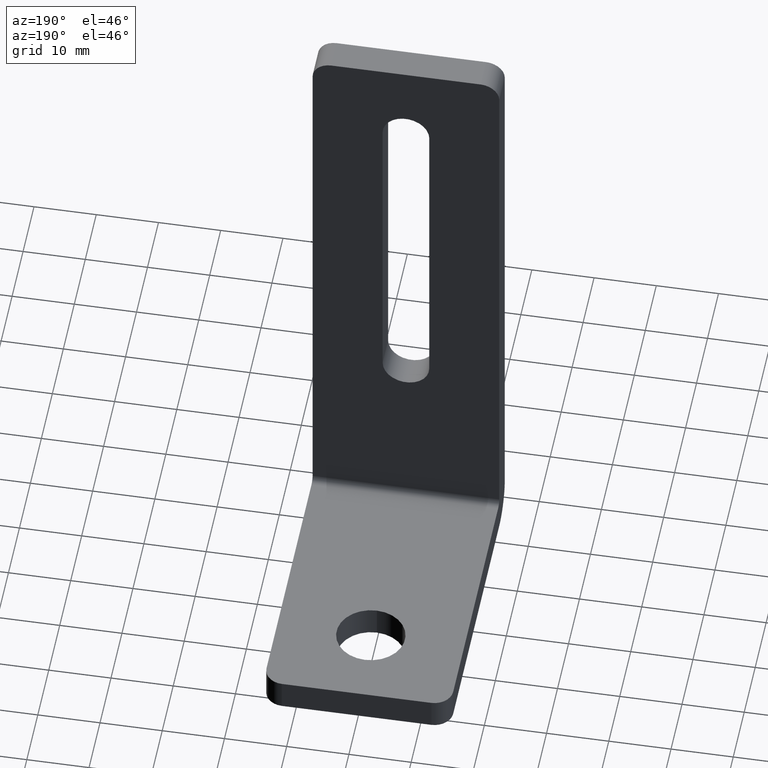
[diagram: clean part render]
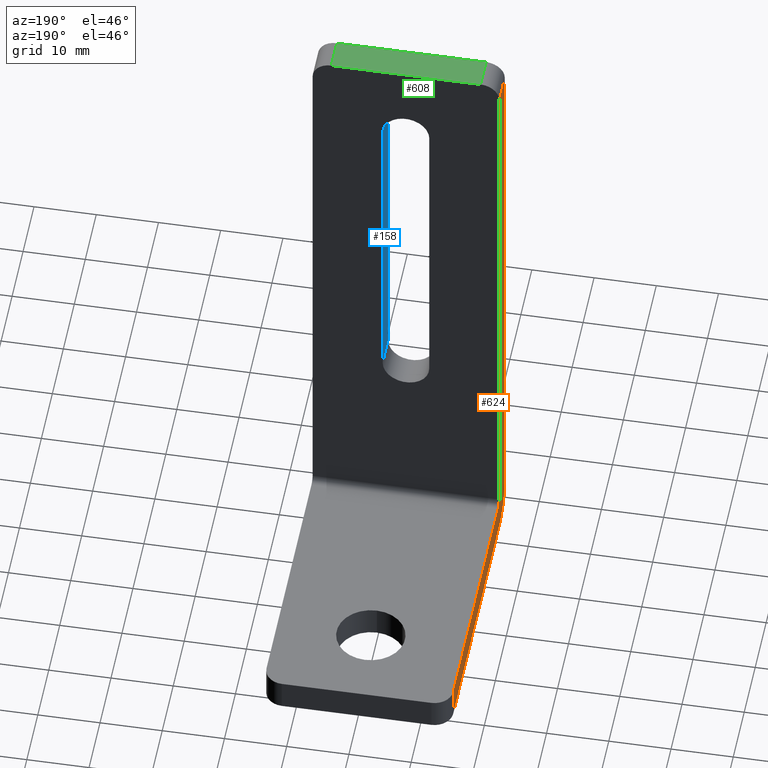
[diagram: same view with three faces highlighted in distinct colors, each labeled with its STEP entity id]
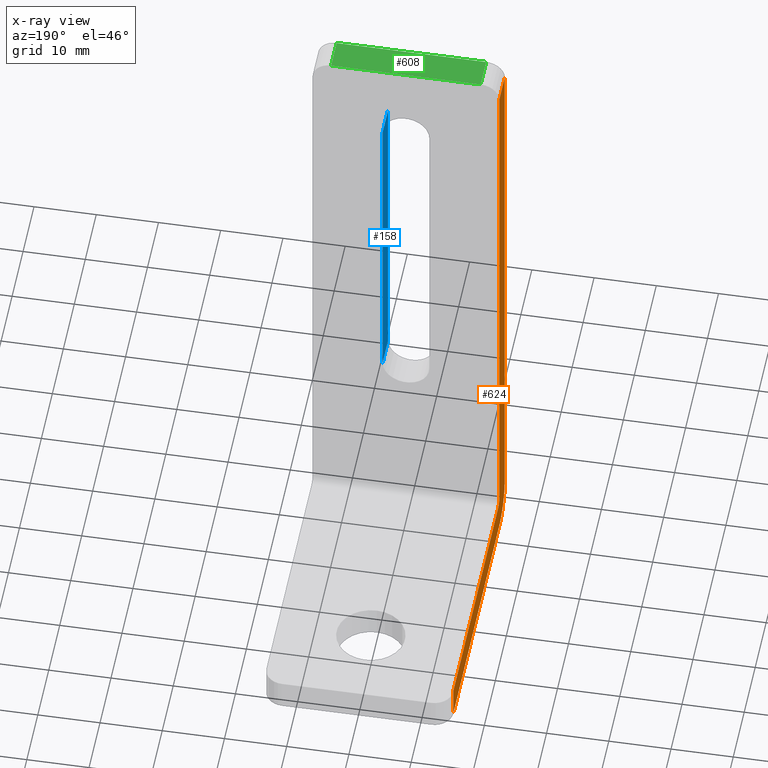
[diagram: x-ray of the same camera — body ghosted, the three highlighted faces saturated]
A machine part, auxiliary view with three faces highlighted in distinct colors.
The next image is the same camera in x-ray (body ghosted, the three faces saturated) — at least one of them is partly hidden behind the body in this view.
Their STEP definitions:

[orange] entity #624 — the highlighted planar face has unit normal (1, 0, 0).
#7=CARTESIAN_POINT('',(-15.0,-30.999999999998181,5.000000000000002));
#8=VERTEX_POINT('',#7);
#9=CARTESIAN_POINT('',(-15.0,-31.999999999998181,6.000000000000002));
#10=VERTEX_POINT('',#9);
#11=CARTESIAN_POINT('',(-15.0,-30.999999999998181,6.000000000000002));
#12=DIRECTION('',(-1.0,6.123234E-017,-3.749399E-033));
#13=DIRECTION('',(6.123234E-017,1.0,-6.123234E-017));
#14=AXIS2_PLACEMENT_3D('',#11,#12,#13);
#15=CIRCLE('',#14,1.000000000000078);
#16=EDGE_CURVE('',#8,#10,#15,.T.);
#49=CARTESIAN_POINT('',(-15.0,-36.999999999998181,5.000000000000003));
#50=VERTEX_POINT('',#49);
#51=CARTESIAN_POINT('',(-15.0,-31.999999999998181,1.959435E-015));
#52=VERTEX_POINT('',#51);
#53=CARTESIAN_POINT('',(-15.0,-31.999999999998181,5.000000000000002));
#54=DIRECTION('',(1.0,-6.123234E-017,3.749399E-033));
#55=DIRECTION('',(6.123234E-017,1.0,-6.123234E-017));
#56=AXIS2_PLACEMENT_3D('',#53,#54,#55);
#57=CIRCLE('',#56,5.0);
#58=EDGE_CURVE('',#50,#52,#57,.T.);
#289=CARTESIAN_POINT('',(-15.0,10.000000000001819,4.999999999999999));
#290=VERTEX_POINT('',#289);
#298=CARTESIAN_POINT('',(-14.999999999999998,10.000000000001819,4.999999999999999));
#299=DIRECTION('',(0.0,-1.0,0.0));
#300=VECTOR('',#299,41.0);
#301=LINE('',#298,#300);
#302=EDGE_CURVE('',#290,#8,#301,.T.);
#356=CARTESIAN_POINT('',(-15.0,10.000000000001819,-6.123234E-016));
#357=VERTEX_POINT('',#356);
#358=CARTESIAN_POINT('',(-15.000000000000004,-31.999999999998181,1.959435E-015));
#359=DIRECTION('',(0.0,1.0,0.0));
#360=VECTOR('',#359,42.0);
#361=LINE('',#358,#360);
#362=EDGE_CURVE('',#52,#357,#361,.T.);
#399=CARTESIAN_POINT('',(-15.0,10.000000000001819,-6.123234E-016));
#400=DIRECTION('',(0.0,0.0,1.0));
#401=VECTOR('',#400,5.0);
#402=LINE('',#399,#401);
#403=EDGE_CURVE('',#357,#290,#402,.T.);
#451=CARTESIAN_POINT('',(-15.0,-36.999999999998174,97.0));
#452=VERTEX_POINT('',#451);
#460=CARTESIAN_POINT('',(-15.0,-36.999999999998174,97.0));
#461=DIRECTION('',(0.0,0.0,-1.0));
#462=VECTOR('',#461,92.0);
#463=LINE('',#460,#462);
#464=EDGE_CURVE('',#452,#50,#463,.T.);
#520=CARTESIAN_POINT('',(-15.0,-31.999999999998174,97.0));
#521=VERTEX_POINT('',#520);
#522=CARTESIAN_POINT('',(-15.0,-31.999999999998181,6.0));
#523=DIRECTION('',(0.0,0.0,1.0));
#524=VECTOR('',#523,91.0);
#525=LINE('',#522,#524);
#526=EDGE_CURVE('',#10,#521,#525,.T.);
#565=CARTESIAN_POINT('',(-15.0,-31.999999999998174,97.0));
#566=DIRECTION('',(0.0,-1.0,0.0));
#567=VECTOR('',#566,5.0);
#568=LINE('',#565,#567);
#569=EDGE_CURVE('',#521,#452,#568,.T.);
#609=CARTESIAN_POINT('',(-15.0,-42.000120064318253,-10.000120064432847));
#610=DIRECTION('',(1.0,0.0,0.0));
#611=DIRECTION('',(0.0,1.0,0.0));
#612=AXIS2_PLACEMENT_3D('',#609,#610,#611);
#613=PLANE('',#612);
#614=ORIENTED_EDGE('',*,*,#302,.F.);
#615=ORIENTED_EDGE('',*,*,#403,.F.);
#616=ORIENTED_EDGE('',*,*,#362,.F.);
#617=ORIENTED_EDGE('',*,*,#58,.F.);
#618=ORIENTED_EDGE('',*,*,#464,.F.);
#619=ORIENTED_EDGE('',*,*,#569,.F.);
#620=ORIENTED_EDGE('',*,*,#526,.F.);
#621=ORIENTED_EDGE('',*,*,#16,.F.);
#622=EDGE_LOOP('',(#614,#615,#616,#617,#618,#619,#620,#621));
#623=FACE_OUTER_BOUND('',#622,.T.);
#624=ADVANCED_FACE('',(#623),#613,.F.);

[blue] entity #158 — the highlighted planar face has unit normal (1, 0, 0).
#101=CARTESIAN_POINT('',(3.750000000000000,-36.999999999998181,33.750000000000000));
#102=VERTEX_POINT('',#101);
#110=CARTESIAN_POINT('',(3.750000000000000,-31.999999999998170,33.750000000000000));
#111=VERTEX_POINT('',#110);
#112=CARTESIAN_POINT('',(3.750000000000000,-31.999999999998170,33.750000000000000));
#113=DIRECTION('',(0.0,-1.0,0.0));
#114=VECTOR('',#113,5.000000000000011);
#115=LINE('',#112,#114);
#116=EDGE_CURVE('',#111,#102,#115,.T.);
#128=CARTESIAN_POINT('',(3.750000000000000,18.000663757326041,33.750000000000000));
#129=DIRECTION('',(1.0,0.0,0.0));
#130=DIRECTION('',(0.0,0.0,1.0));
#131=AXIS2_PLACEMENT_3D('',#128,#129,#130);
#132=PLANE('',#131);
#133=ORIENTED_EDGE('',*,*,#116,.T.);
#134=CARTESIAN_POINT('',(3.750000000000000,-36.999999999998174,86.250000000000000));
#135=VERTEX_POINT('',#134);
#136=CARTESIAN_POINT('',(3.750000000000000,-36.999999999998181,33.750000000000000));
#137=DIRECTION('',(0.0,0.0,1.0));
#138=VECTOR('',#137,52.500000000000000);
#139=LINE('',#136,#138);
#140=EDGE_CURVE('',#102,#135,#139,.T.);
#141=ORIENTED_EDGE('',*,*,#140,.T.);
#142=CARTESIAN_POINT('',(3.750000000000000,-31.999999999998170,86.250000000000000));
#143=VERTEX_POINT('',#142);
#144=CARTESIAN_POINT('',(3.750000000000000,-31.999999999998170,86.250000000000000));
#145=DIRECTION('',(0.0,-1.0,0.0));
#146=VECTOR('',#145,5.000000000000011);
#147=LINE('',#144,#146);
#148=EDGE_CURVE('',#143,#135,#147,.T.);
#149=ORIENTED_EDGE('',*,*,#148,.F.);
#150=CARTESIAN_POINT('',(3.750000000000000,-31.999999999998170,33.750000000000000));
#151=DIRECTION('',(0.0,0.0,1.0));
#152=VECTOR('',#151,52.500000000000000);
#153=LINE('',#150,#152);
#154=EDGE_CURVE('',#111,#143,#153,.T.);
#155=ORIENTED_EDGE('',*,*,#154,.F.);
#156=EDGE_LOOP('',(#133,#141,#149,#155));
#157=FACE_OUTER_BOUND('',#156,.T.);
#158=ADVANCED_FACE('',(#157),#132,.F.);

[green] entity #608 — the highlighted planar face has unit normal (0, 0, 1).
#432=CARTESIAN_POINT('',(12.0,-36.999999999998174,100.0));
#433=VERTEX_POINT('',#432);
#443=CARTESIAN_POINT('',(-12.0,-36.999999999998174,100.0));
#444=VERTEX_POINT('',#443);
#445=CARTESIAN_POINT('',(-12.0,-36.999999999998174,100.0));
#446=DIRECTION('',(1.0,0.0,0.0));
#447=VECTOR('',#446,24.0);
#448=LINE('',#445,#447);
#449=EDGE_CURVE('',#444,#433,#448,.T.);
#487=CARTESIAN_POINT('',(12.0,-31.999999999998170,100.0));
#488=VERTEX_POINT('',#487);
#489=CARTESIAN_POINT('',(12.0,-31.999999999998170,100.0));
#490=DIRECTION('',(0.0,-1.0,0.0));
#491=VECTOR('',#490,5.000000000000004);
#492=LINE('',#489,#491);
#493=EDGE_CURVE('',#488,#433,#492,.T.);
#528=CARTESIAN_POINT('',(-12.0,-31.999999999998174,100.0));
#529=VERTEX_POINT('',#528);
#537=CARTESIAN_POINT('',(-12.0,-31.999999999998174,100.0));
#538=DIRECTION('',(1.0,0.0,0.0));
#539=VECTOR('',#538,24.0);
#540=LINE('',#537,#539);
#541=EDGE_CURVE('',#529,#488,#540,.T.);
#572=CARTESIAN_POINT('',(-12.0,-31.999999999998174,100.0));
#573=DIRECTION('',(0.0,-1.0,0.0));
#574=VECTOR('',#573,5.0);
#575=LINE('',#572,#574);
#576=EDGE_CURVE('',#529,#444,#575,.T.);
#597=CARTESIAN_POINT('',(-15.0,-31.999999999998174,100.0));
#598=DIRECTION('',(0.0,0.0,1.0));
#599=DIRECTION('',(0.0,-1.0,0.0));
#600=AXIS2_PLACEMENT_3D('',#597,#598,#599);
#601=PLANE('',#600);
#602=ORIENTED_EDGE('',*,*,#576,.T.);
#603=ORIENTED_EDGE('',*,*,#449,.T.);
#604=ORIENTED_EDGE('',*,*,#493,.F.);
#605=ORIENTED_EDGE('',*,*,#541,.F.);
#606=EDGE_LOOP('',(#602,#603,#604,#605));
#607=FACE_OUTER_BOUND('',#606,.T.);
#608=ADVANCED_FACE('',(#607),#601,.T.);